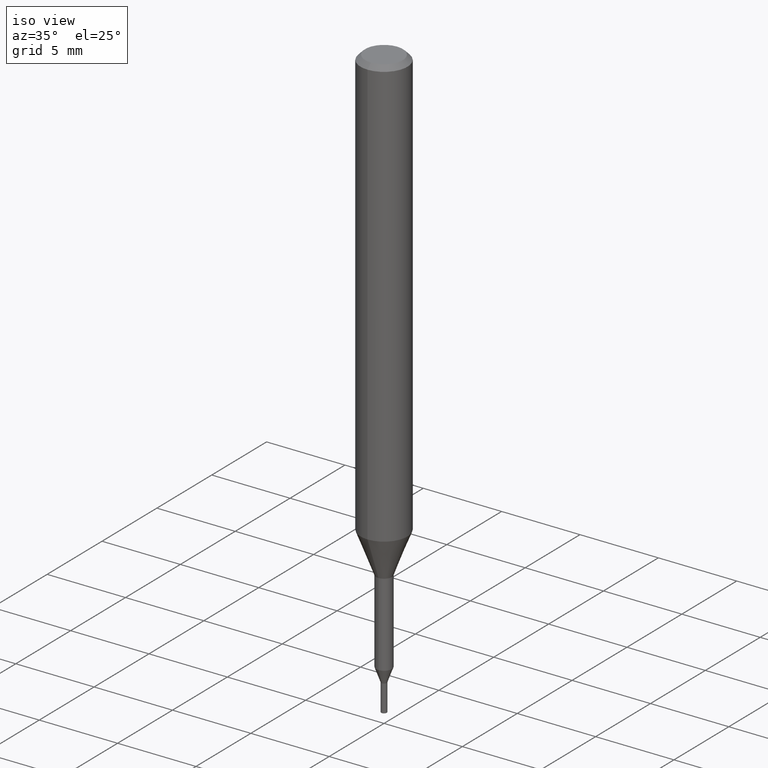
[diagram: clean part render]
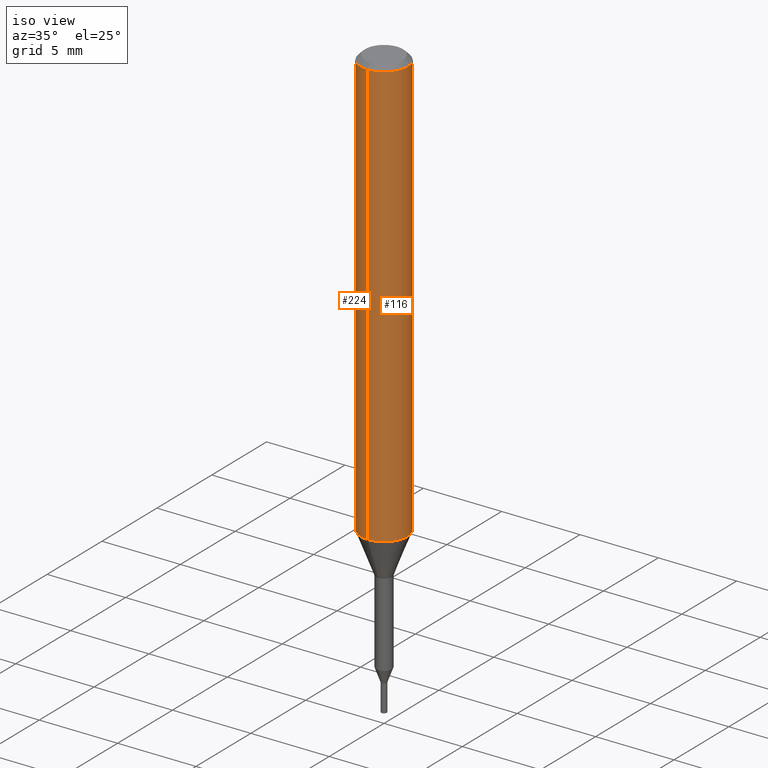
[diagram: same view with one multi-face feature highlighted, each face labeled with its STEP entity id]
A machine part, iso view. The highlighted faces form ONE feature: a constant-radius fillet chain: 2 tangent blend faces with common blend radius 1.5 mm. The faces share edges in the B-rep.
Their STEP definitions:
[1] entity #116 (Cylinder):
#116=ADVANCED_FACE('',(#295),#296,.T.);
#148=EDGE_CURVE('',#166,#218,#333,.T.);
#164=EDGE_CURVE('',#180,#202,#350,.T.);
#166=VERTEX_POINT('',#352);
#180=VERTEX_POINT('',#367);
#202=VERTEX_POINT('',#393);
#218=VERTEX_POINT('',#411);
#226=EDGE_CURVE('',#202,#218,#421,.T.);
#238=EDGE_CURVE('',#166,#180,#433,.T.);
#295=FACE_OUTER_BOUND('',#485,.T.);
#296=CYLINDRICAL_SURFACE('',#486,1.5);
#333=CIRCLE('',#535,1.5);
#350=CIRCLE('',#555,1.5);
#352=CARTESIAN_POINT('',(0.0,1.5,-0.300000000000001));
#367=CARTESIAN_POINT('',(0.0,1.5,-27.395));
#393=CARTESIAN_POINT('',(1.83690953073357E-016,-1.5,-27.395));
#411=CARTESIAN_POINT('',(1.83690953073357E-016,-1.5,-0.300000000000001));
#421=LINE('',#640,#641);
#433=LINE('',#660,#661);
#485=EDGE_LOOP('',(#717,#718,#719,#720));
#486=AXIS2_PLACEMENT_3D('',#721,#722,#723);
#535=AXIS2_PLACEMENT_3D('',#776,#777,#778);
#555=AXIS2_PLACEMENT_3D('',#795,#796,#797);
#640=CARTESIAN_POINT('',(1.83690953073357E-016,-1.5,-13.8475));
#641=VECTOR('',#886,1.0);
#660=CARTESIAN_POINT('',(-1.83690953073357E-016,1.5,-13.8475));
#661=VECTOR('',#900,1.0);
#717=ORIENTED_EDGE('',*,*,#238,.F.);
#718=ORIENTED_EDGE('',*,*,#148,.T.);
#719=ORIENTED_EDGE('',*,*,#226,.F.);
#720=ORIENTED_EDGE('',*,*,#164,.F.);
#721=CARTESIAN_POINT('',(0.0,0.0,-13.8475));
#722=DIRECTION('',(-0.0,-0.0,1.0));
#723=DIRECTION('',(0.0,1.0,0.0));
#776=CARTESIAN_POINT('',(0.0,0.0,-0.300000000000001));
#777=DIRECTION('',(0.0,0.0,-1.0));
#778=DIRECTION('',(0.0,1.0,0.0));
#795=CARTESIAN_POINT('',(0.0,0.0,-27.395));
#796=DIRECTION('',(0.0,0.0,-1.0));
#797=DIRECTION('',(0.0,1.0,0.0));
#886=DIRECTION('',(-0.0,-0.0,1.0));
#900=DIRECTION('',(0.0,0.0,-1.0));
[2] entity #224 (Cylinder):
#120=EDGE_CURVE('',#218,#166,#300,.T.);
#166=VERTEX_POINT('',#352);
#180=VERTEX_POINT('',#367);
#202=VERTEX_POINT('',#393);
#218=VERTEX_POINT('',#411);
#224=ADVANCED_FACE('',(#418),#419,.T.);
#226=EDGE_CURVE('',#202,#218,#421,.T.);
#238=EDGE_CURVE('',#166,#180,#433,.T.);
#268=EDGE_CURVE('',#202,#180,#466,.T.);
#300=CIRCLE('',#492,1.5);
#352=CARTESIAN_POINT('',(0.0,1.5,-0.300000000000001));
#367=CARTESIAN_POINT('',(0.0,1.5,-27.395));
#393=CARTESIAN_POINT('',(1.83690953073357E-016,-1.5,-27.395));
#411=CARTESIAN_POINT('',(1.83690953073357E-016,-1.5,-0.300000000000001));
#418=FACE_OUTER_BOUND('',#636,.T.);
#419=CYLINDRICAL_SURFACE('',#637,1.5);
#421=LINE('',#640,#641);
#433=LINE('',#660,#661);
#466=CIRCLE('',#706,1.5);
#492=AXIS2_PLACEMENT_3D('',#727,#728,#729);
#636=EDGE_LOOP('',(#879,#880,#881,#882));
#637=AXIS2_PLACEMENT_3D('',#883,#884,#885);
#640=CARTESIAN_POINT('',(1.83690953073357E-016,-1.5,-13.8475));
#641=VECTOR('',#886,1.0);
#660=CARTESIAN_POINT('',(-1.83690953073357E-016,1.5,-13.8475));
#661=VECTOR('',#900,1.0);
#706=AXIS2_PLACEMENT_3D('',#935,#936,#937);
#727=CARTESIAN_POINT('',(0.0,0.0,-0.300000000000001));
#728=DIRECTION('',(0.0,0.0,-1.0));
#729=DIRECTION('',(0.0,1.0,0.0));
#879=ORIENTED_EDGE('',*,*,#238,.T.);
#880=ORIENTED_EDGE('',*,*,#268,.F.);
#881=ORIENTED_EDGE('',*,*,#226,.T.);
#882=ORIENTED_EDGE('',*,*,#120,.T.);
#883=CARTESIAN_POINT('',(0.0,0.0,-13.8475));
#884=DIRECTION('',(-0.0,-0.0,1.0));
#885=DIRECTION('',(0.0,1.0,0.0));
#886=DIRECTION('',(-0.0,-0.0,1.0));
#900=DIRECTION('',(0.0,0.0,-1.0));
#935=CARTESIAN_POINT('',(0.0,0.0,-27.395));
#936=DIRECTION('',(0.0,0.0,-1.0));
#937=DIRECTION('',(0.0,1.0,0.0));